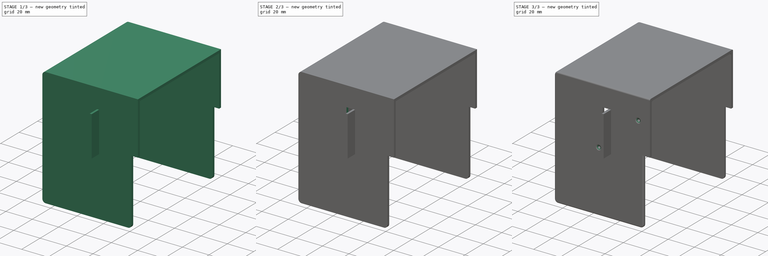
[diagram: build sequence overview — one tinted view per stage of 3, left to right]
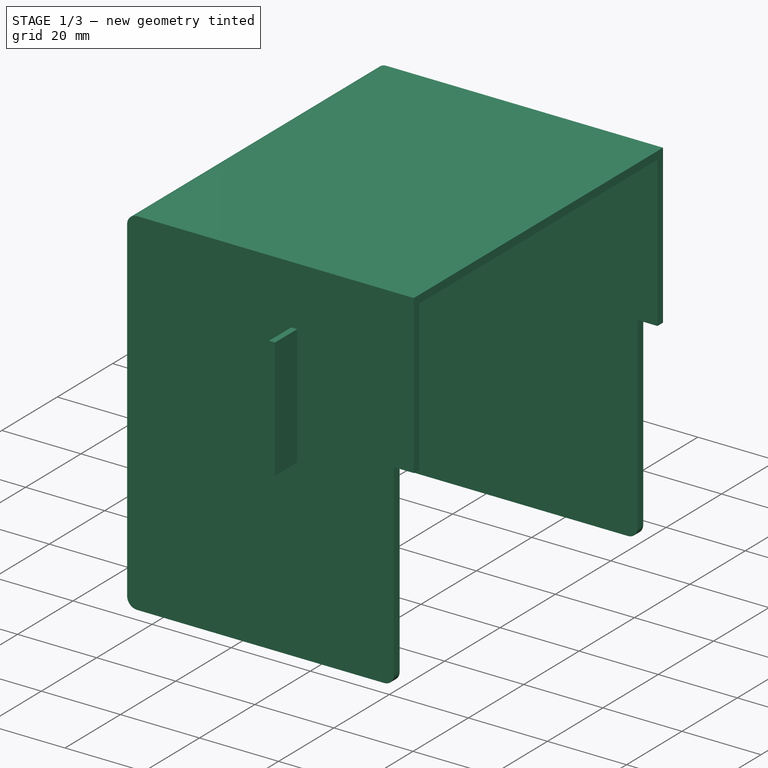
[diagram: stage 1 of 3 — iso view after this stage's code; geometry added in this stage tinted green]
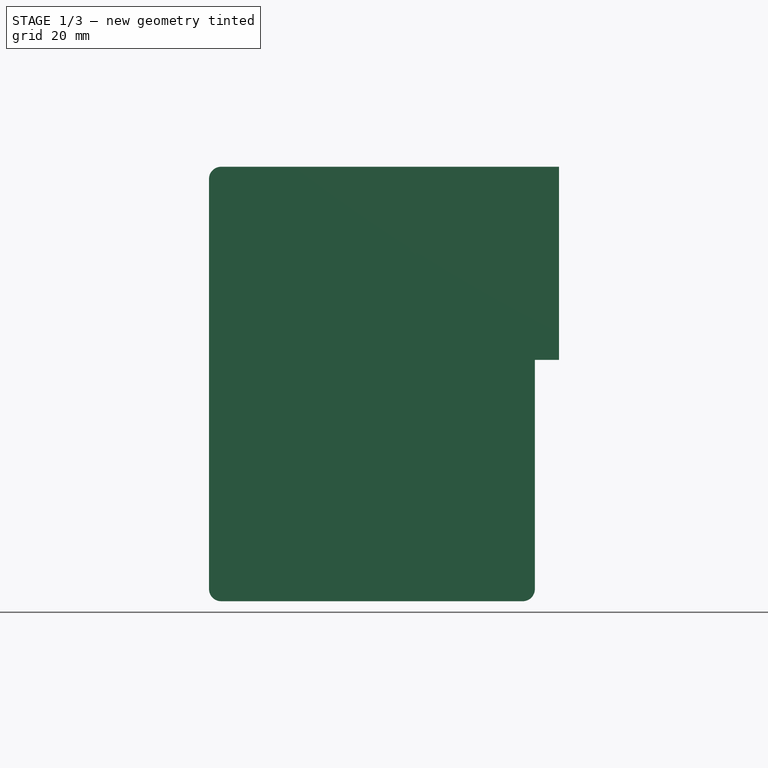
[diagram: stage 1 of 3 — front view after this stage's code; geometry added in this stage tinted green]
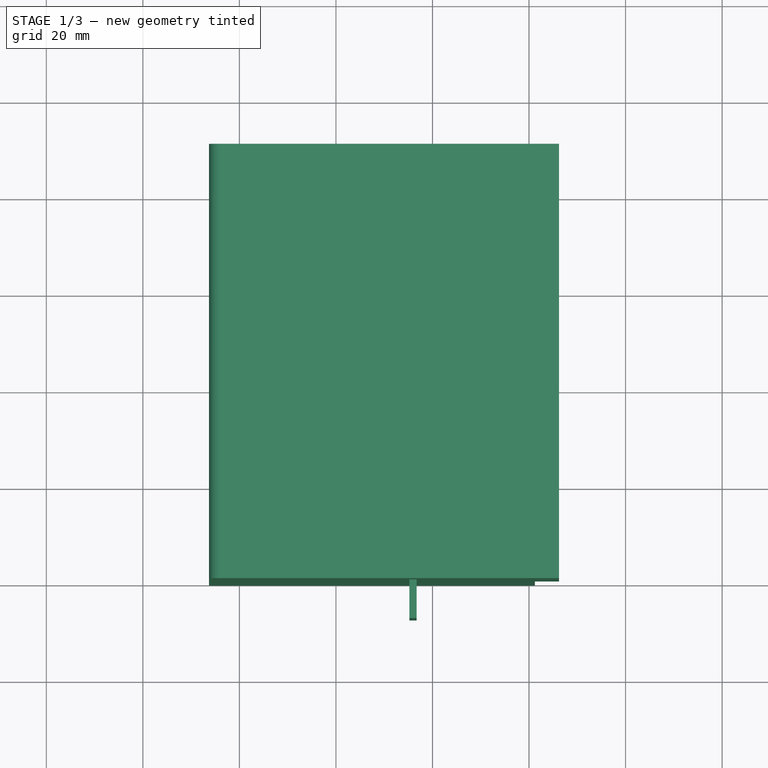
[diagram: stage 1 of 3 — top view after this stage's code; geometry added in this stage tinted green]
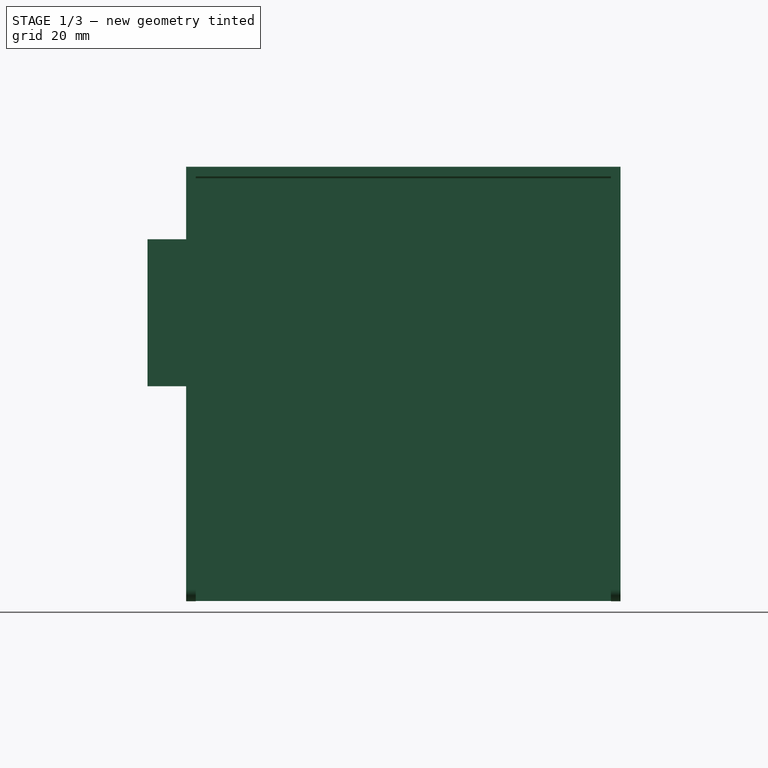
[diagram: stage 1 of 3 — right view after this stage's code; geometry added in this stage tinted green]
FCSTD DOCUMENT  (FreeCAD 0.22R38385 (Git))
Label: artillery
License: All rights reserved
objects: Sketcher::SketchObject×3, PartDesign::Pad×3, PartDesign::Pocket×2, PartDesign::Thickness×1, PartDesign::Hole×1, PartDesign::Fillet×1, PartDesign::Body×1
note: 31 computed .brp shape members not serialized (recipe doc carries the construction recipe); baked Part::Feature solids carry a one-line shape summary decoded from their .brp

FEATURE [Sketcher::SketchObject] Sketch
  ArcFitTolerance = 1e-06
  AttachmentSupport = -> [XZ_Plane]
  FullyConstrained = false
  MakeInternals = false
  MapMode = 5
  Placement = pos=(0,0,0) rot=(1,0,0;1.5708rad)
  sketch-geometry (21):
    g0: Circle CenterX=67.2071 CenterY=73.431 CenterZ=0 NormalX=0 NormalY=0 NormalZ=1 AngleXU=0 Radius=1
    g1: Circle CenterX=97.2071 CenterY=99.8885 CenterZ=0 NormalX=0 NormalY=0 NormalZ=1 AngleXU=0 Radius=1
    g2: Circle CenterX=97.2071 CenterY=99.8885 CenterZ=0 NormalX=0 NormalY=0 NormalZ=1 AngleXU=0 Radius=2
    g3: Circle CenterX=67.2071 CenterY=73.431 CenterZ=0 NormalX=0 NormalY=0 NormalZ=1 AngleXU=0 Radius=2
    g4: LineSegment StartX=75.2071 StartY=71.431 StartZ=0 EndX=75.2071 EndY=101.889 EndZ=0
    g5: LineSegment StartX=70.2071 StartY=101.889 StartZ=0 EndX=70.2071 EndY=71.431 EndZ=0
    g6: LineSegment StartX=75.2071 StartY=101.889 StartZ=0 EndX=75.2071 EndY=71.431 EndZ=0
    g7: LineSegment StartX=75.2071 StartY=71.431 StartZ=0 EndX=76.7071 EndY=71.431 EndZ=0
    g8: LineSegment StartX=76.7071 StartY=71.431 StartZ=0 EndX=76.7071 EndY=101.889 EndZ=0
    g9: LineSegment StartX=76.7071 StartY=101.889 StartZ=0 EndX=75.2071 EndY=101.889 EndZ=0
    g10: LineSegment StartX=33.7071 StartY=114.389 StartZ=0 EndX=33.7071 EndY=29.3885 EndZ=0
    g11: LineSegment StartX=36.2071 StartY=26.8885 StartZ=0 EndX=98.7071 EndY=26.8885 EndZ=0
    g12: LineSegment StartX=106.207 StartY=76.8885 StartZ=0 EndX=106.207 EndY=116.889 EndZ=0
    g13: LineSegment StartX=106.207 StartY=116.889 StartZ=0 EndX=36.2071 EndY=116.889 EndZ=0
    g14: LineSegment StartX=106.207 StartY=76.8885 StartZ=0 EndX=101.207 EndY=76.8885 EndZ=0
    g15: LineSegment StartX=101.207 StartY=76.8885 StartZ=0 EndX=101.207 EndY=29.3885 EndZ=0
    g16: ArcOfCircle CenterX=36.2071 CenterY=114.389 CenterZ=0 NormalX=0 NormalY=0 NormalZ=1 AngleXU=0 Radius=2.5 StartAngle=1.5708 EndAngle=3.14159
    g17: ArcOfCircle CenterX=36.2071 CenterY=29.3885 CenterZ=0 NormalX=0 NormalY=0 NormalZ=1 AngleXU=0 Radius=2.5 StartAngle=3.14159 EndAngle=4.71239
    g18: ArcOfCircle CenterX=98.7071 CenterY=29.3885 CenterZ=0 NormalX=0 NormalY=0 NormalZ=1 AngleXU=0 Radius=2.5 StartAngle=4.71239 EndAngle=6.28319
    g19: LineSegment StartX=70.2071 StartY=101.889 StartZ=0 EndX=75.2071 EndY=101.889 EndZ=0
    g20: LineSegment StartX=70.2071 StartY=71.431 StartZ=0 EndX=75.2071 EndY=71.431 EndZ=0
  constraints (51):
    c: Diameter(g1) = 2
    c: Equal(g1,g0)
    c: Distance(g0,g1) = 40
    c: DistanceX(g0,g1) = 30
    c: Coincident(g2,g1)
    c: Distance(g2,g1) = 1
    c: Coincident(g3,g0)
    c: Distance(g3,g0) = 1
    c: Vertical(g4)
    c: Vertical(g5)
    c: DistanceX(g5,g4) = 5
    c: Distance(g3,g5) = 1
    c: Coincident(g6,g7)
    c: Coincident(g7,g8)
    c: Coincident(g8,g9)
    c: Coincident(g9,g6)
    c: Vertical(g8)
    c: Horizontal(g7)
    c: Horizontal(g9)
    c: Distance(g6,g8) = 1.5
    c: Coincident(g6,g4)
    c: Coincident(g12,g13)
    c: Vertical(g10)
    c: Vertical(g12)
    c: Horizontal(g11)
    c: Horizontal(g13)
    c: Distance(g2,g13) = 15
    c: Distance(g2,g12) = 7
    c: Horizontal(g14)
    c: Coincident(g15,g14)
    c: Vertical(g15)
    c: DistanceY(g12,g12) = 40
    c: DistanceX(g14,g14) = 5
    c: Coincident(g14,g12)
    c: Diameter(g16) = 5
    c: Equal(g16,g17)
    c: Equal(g17,g18)
    c: Tangent(g16,g10) = -1.5708
    c: Tangent(g16,g13) = -1.5708
    c: Tangent(g17,g11) = -1.5708
    c: Tangent(g17,g10) = -1.5708
    c: Tangent(g15,g18) = 1.5708
    c: Tangent(g11,g18) = -1.5708
    c: DistanceX(g13,g13) = 70
    c: DistanceY(g10,g10) = 85
    c: Coincident(g19,g5)
    c: Coincident(g19,g4)
    c: Horizontal(g19)
    c: Coincident(g20,g5)
    c: Coincident(g20,g4)
    c: Horizontal(g20)
FEATURE [PartDesign::Pad] Pad
  Direction = (0,-1,2e-16)
  Length = 90
  Length2 = 10
  Placement = pos=(0,0,0) rot=(1,0,0;1.5708rad)
  Profile = -> Sketch [Edge12,Edge13,Edge14,Edge15,Edge16,Edge17,Edge18,Edge19,Edge11]
  ReferenceAxis = -> Sketch [N_Axis]
  Refine = true
  Reversed = true
  Suppressed = false
  Type = 0
FEATURE [PartDesign::Pad] Pad001
  BaseFeature = -> Pad
  Direction = (0,-1,2e-16)
  Length = 8
  Length2 = 10
  Placement = pos=(0,0,0) rot=(1,0,0;1.5708rad)
  Profile = -> Sketch [Edge9,Edge6,Vertex5,Edge5,Edge7]
  ReferenceAxis = -> Sketch [N_Axis]
  Refine = true
  Suppressed = false
  Type = 0
FEATURE [PartDesign::Thickness] Thickness
  Base = -> Pad001 [Face2,Face8,Face6,Face10,Face11,Face9]
  BaseFeature = -> Pad001
  Intersection = false
  Join = 1
  Mode = 2
  Refine = true
  Reversed = true
  SupportTransform = false
  Suppressed = false
  Value = 2
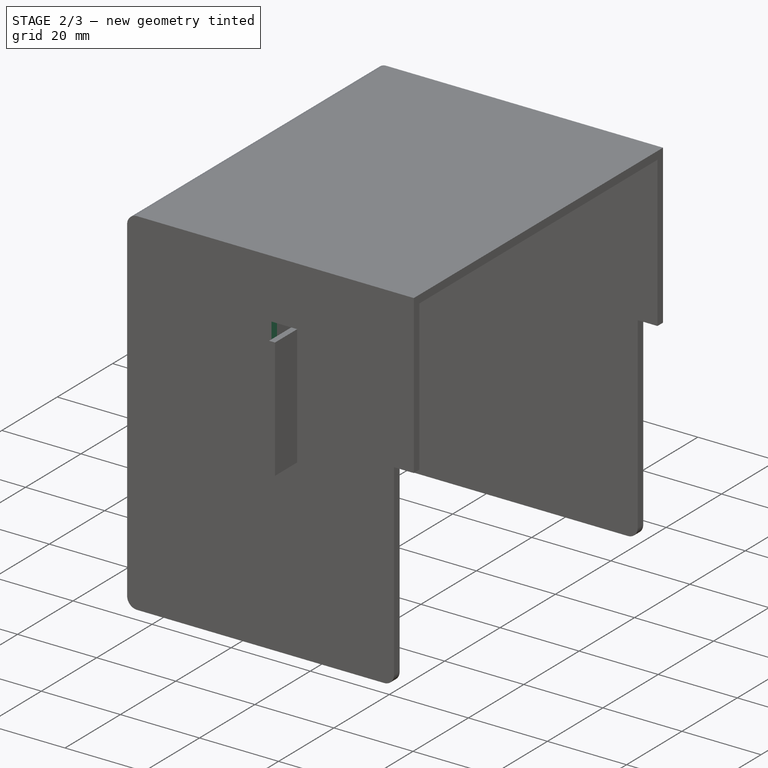
[diagram: stage 2 of 3 — iso view after this stage's code; geometry added in this stage tinted green]
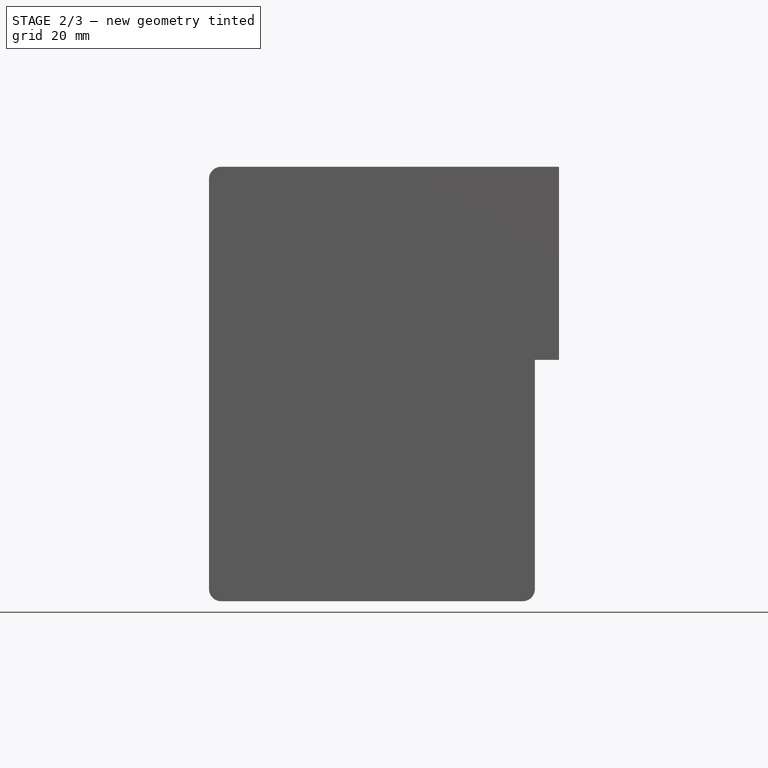
[diagram: stage 2 of 3 — front view after this stage's code; geometry added in this stage tinted green]
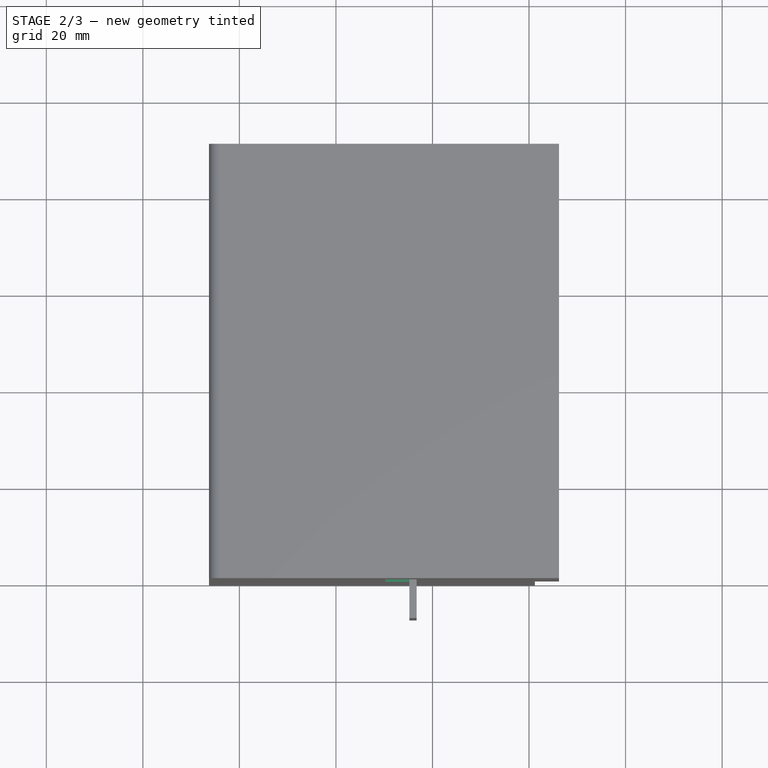
[diagram: stage 2 of 3 — top view after this stage's code; geometry added in this stage tinted green]
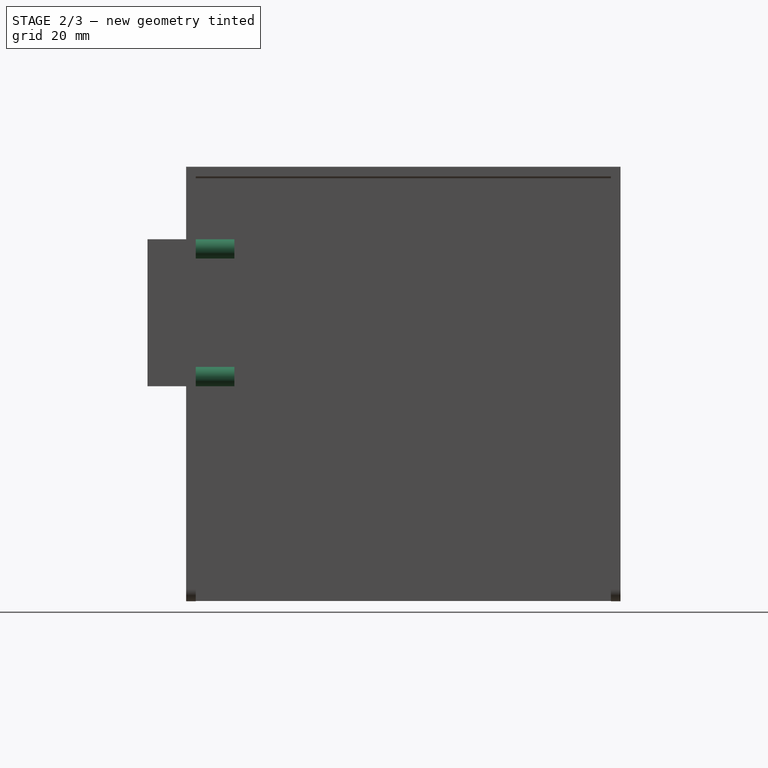
[diagram: stage 2 of 3 — right view after this stage's code; geometry added in this stage tinted green]
FEATURE [PartDesign::Pad] Pad002
  BaseFeature = -> Thickness
  Direction = (0,-1,2e-16)
  Length = 10
  Length2 = 10
  Profile = -> Sketch [Edge3,Edge2,Edge4,Edge1]
  ReferenceAxis = -> Sketch [N_Axis]
  Refine = true
  Reversed = true
  Suppressed = false
  Type = 0
FEATURE [Sketcher::SketchObject] Sketch001
  ArcFitTolerance = 1e-06
  AttachmentSupport = -> [XZ_Plane]
  ExternalGeometry = -> [Sketch]
  FullyConstrained = true
  MakeInternals = false
  MapMode = 5
  Placement = pos=(0,0,0) rot=(1,0,0;1.5708rad)
  sketch-geometry (4):
    g0: LineSegment StartX=70.2071 StartY=101.889 StartZ=0 EndX=70.2071 EndY=71.431 EndZ=0
    g1: LineSegment StartX=70.2071 StartY=71.431 StartZ=0 EndX=75.2071 EndY=71.431 EndZ=0
    g2: LineSegment StartX=75.2071 StartY=71.431 StartZ=0 EndX=75.2071 EndY=101.889 EndZ=0
    g3: LineSegment StartX=75.2071 StartY=101.889 StartZ=0 EndX=70.2071 EndY=101.889 EndZ=0
  constraints (10):
    c: Coincident(g0,g1)
    c: Coincident(g1,g2)
    c: Coincident(g2,g3)
    c: Coincident(g3,g0)
    c: Vertical(g0)
    c: Vertical(g2)
    c: Horizontal(g1)
    c: Horizontal(g3)
    c: Coincident(g0,g-3)
    c: Coincident(g1,g-4)
FEATURE [PartDesign::Pocket] Pocket
  BaseFeature = -> Pad002
  Direction = (0,1,-2e-16)
  Length = 0
  Length2 = 5
  Profile = -> Sketch001
  ReferenceAxis = -> Sketch001 [N_Axis]
  Refine = true
  Suppressed = false
  Type = 3
  UpToFace = -> Pad002 [Face6]
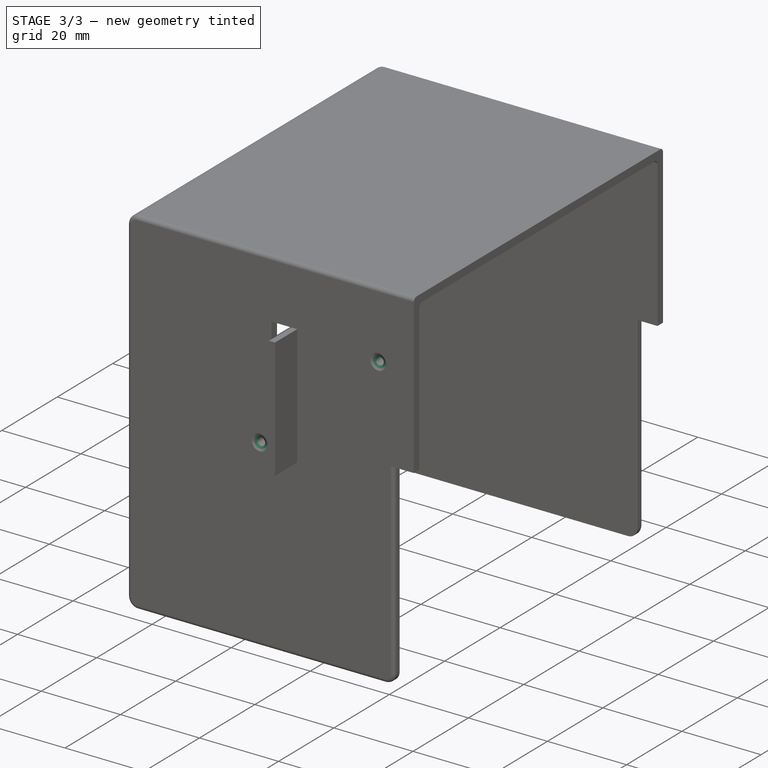
[diagram: stage 3 of 3 — iso view after this stage's code; geometry added in this stage tinted green]
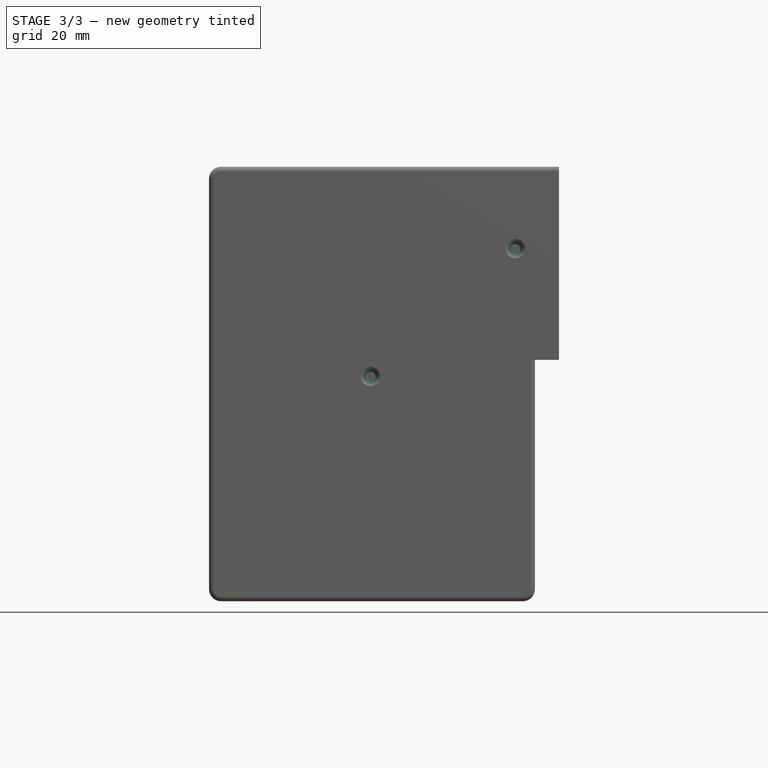
[diagram: stage 3 of 3 — front view after this stage's code; geometry added in this stage tinted green]
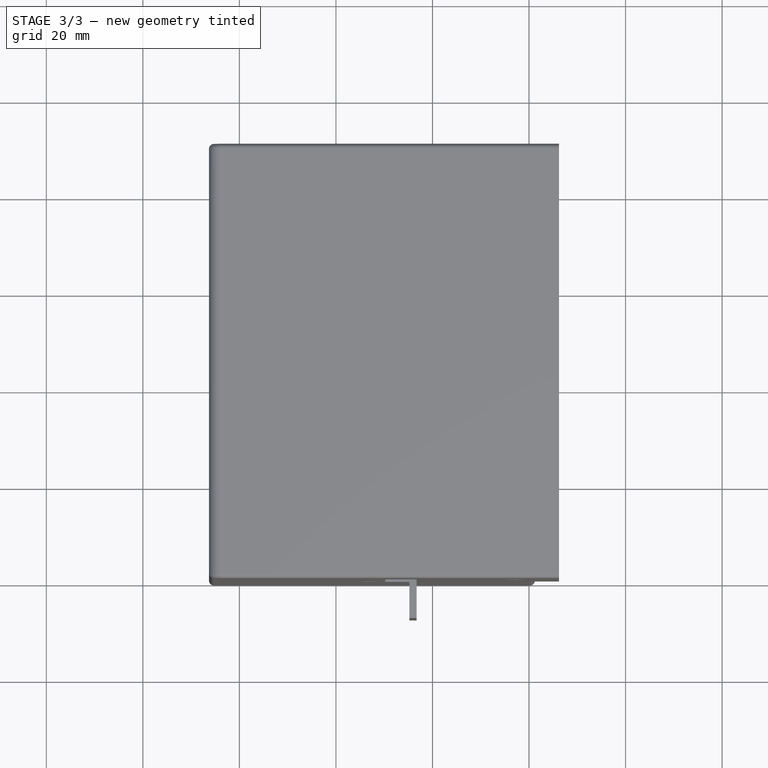
[diagram: stage 3 of 3 — top view after this stage's code; geometry added in this stage tinted green]
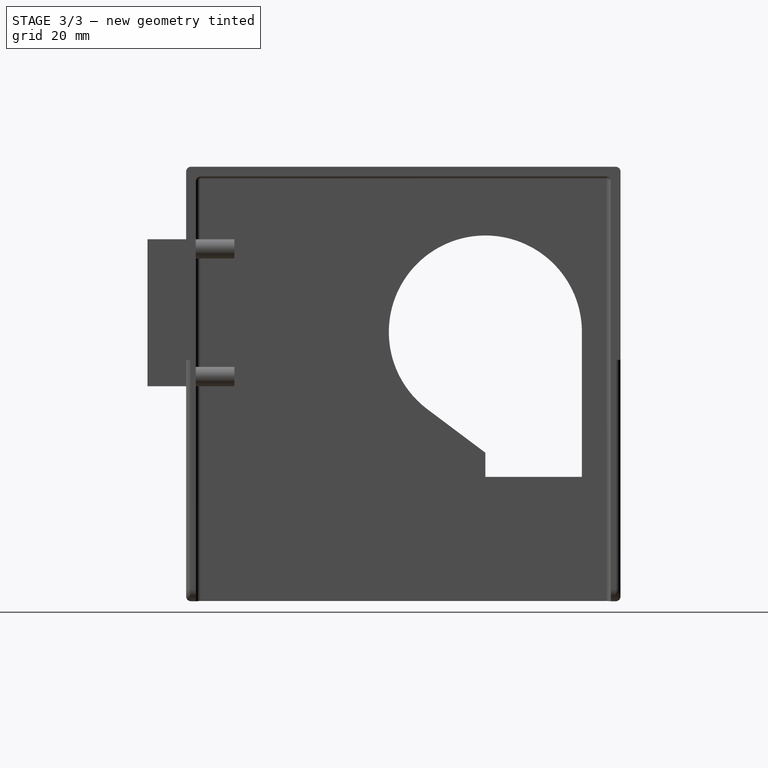
[diagram: stage 3 of 3 — right view after this stage's code; geometry added in this stage tinted green]
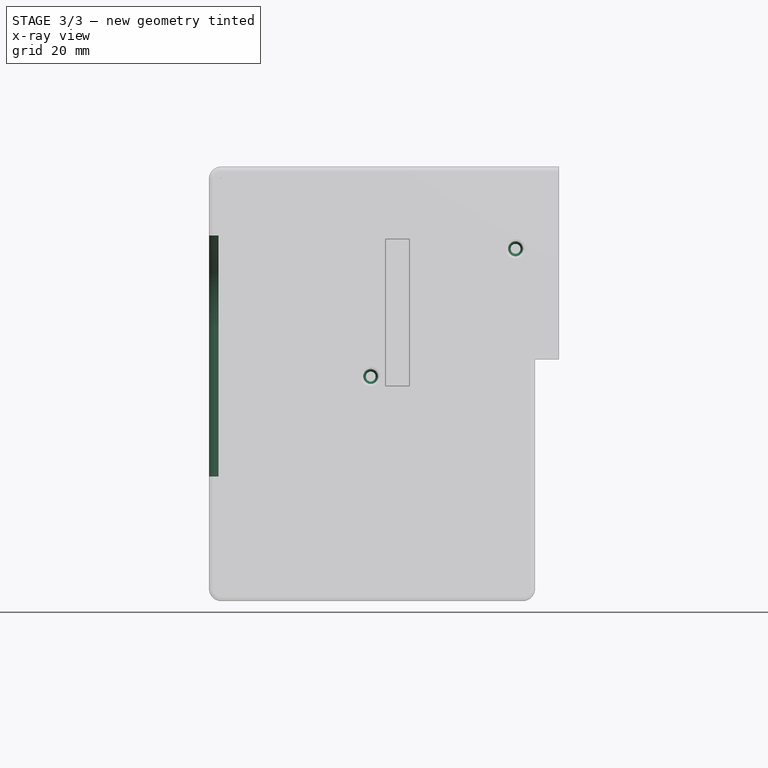
[diagram: stage 3 of 3 — x-ray composite at the front view; earlier geometry ghosted, this stage's added geometry solid]
FEATURE [PartDesign::Hole] Hole
  BaseFeature = -> Pocket
  CustomThreadClearance = 0
  Depth = 25
  DepthType = 0
  Diameter = 2
  DrillForDepth = false
  DrillPoint = 1
  DrillPointAngle = 118
  HoleCutCountersinkAngle = 120
  HoleCutCustomValues = false
  HoleCutDepth = 0
  HoleCutDiameter = 4
  HoleCutType = 2
  ModelThread = false
  Profile = -> Sketch [Edge2,Edge1]
  Refine = true
  Suppressed = false
  Tapered = false
  TaperedAngle = 90
  ThreadClass = 0
  ThreadDepth = 25
  ThreadDepthType = 0
  ThreadDirection = 0
  ThreadFit = 0
  ThreadSize = 0
  ThreadType = 0
  Threaded = false
  UseCustomThreadClearance = false
FEATURE [Sketcher::SketchObject] Sketch002
  ArcFitTolerance = 1e-06
  AttachmentSupport = -> [Hole]
  ExternalGeometry = -> [Hole]
  FullyConstrained = true
  MakeInternals = false
  MapMode = 5
  Placement = pos=(33.7071,0,0) rot=(0.57735,-0.57735,-0.57735;2.0944rad)
  sketch-geometry (6):
    g0: ArcOfCircle CenterX=-62 CenterY=82.6564 CenterZ=0 NormalX=0 NormalY=0 NormalZ=1 AngleXU=0 Radius=20 StartAngle=5.35589 EndAngle=9.42478
    g1: LineSegment StartX=-82 StartY=82.6564 StartZ=0 EndX=-82 EndY=52.6564 EndZ=0
    g2: LineSegment StartX=-62 StartY=57.6564 StartZ=0 EndX=-62 EndY=52.6564 EndZ=0
    g3: LineSegment [constr] StartX=-62 StartY=57.6564 StartZ=0 EndX=-62 EndY=82.6564 EndZ=0
    g4: LineSegment StartX=-62 StartY=52.6564 StartZ=0 EndX=-82 EndY=52.6564 EndZ=0
    g5: LineSegment StartX=-50 StartY=66.6564 StartZ=0 EndX=-62 EndY=57.6564 EndZ=0
  constraints (15):
    c: Diameter(g0) = 40
    c: Vertical(g1)
    c: Vertical(g2)
    c: Coincident(g3,g0)
    c: Vertical(g3)
    c: Coincident(g4,g2)
    c: Coincident(g4,g1)
    c: Horizontal(g4)
    c: Tangent(g0,g1) = -1.5708
    c: Block(g0)
    c: DistanceY(g2,g5) = 5
    c: DistanceY(g1,g1) = 30
    c: Tangent(g0,g5) = 1.5708
    c: Coincident(g2,g5)
    c: Coincident(g3,g2)
FEATURE [PartDesign::Pocket] Pocket001
  BaseFeature = -> Hole
  Direction = (1,0,0)
  Length = 0
  Length2 = 5
  Profile = -> Sketch002
  ReferenceAxis = -> Sketch002 [N_Axis]
  Refine = true
  Suppressed = false
  Type = 3
  UpToFace = -> Hole [Face27]
FEATURE [PartDesign::Fillet] Fillet
  Base = -> Pocket001 [Edge52,Edge53,Edge50,Edge41,Edge39,Edge37,Edge4,Edge14,Edge29,Edge3,Edge13,Edge16]
  BaseFeature = -> Pocket001
  Radius = 1
  Refine = true
  SupportTransform = false
  Suppressed = false
  UseAllEdges = false
FEATURE [PartDesign::Body] Body  label="extruder case"
  AllowCompound = false
  Group = -> [Sketch,Pad,Pad001,Thickness,Pad002,Sketch001,Pocket,Hole,Sketch002,Pocket001,Fillet]
  Origin = -> Origin
  Tip = -> Fillet
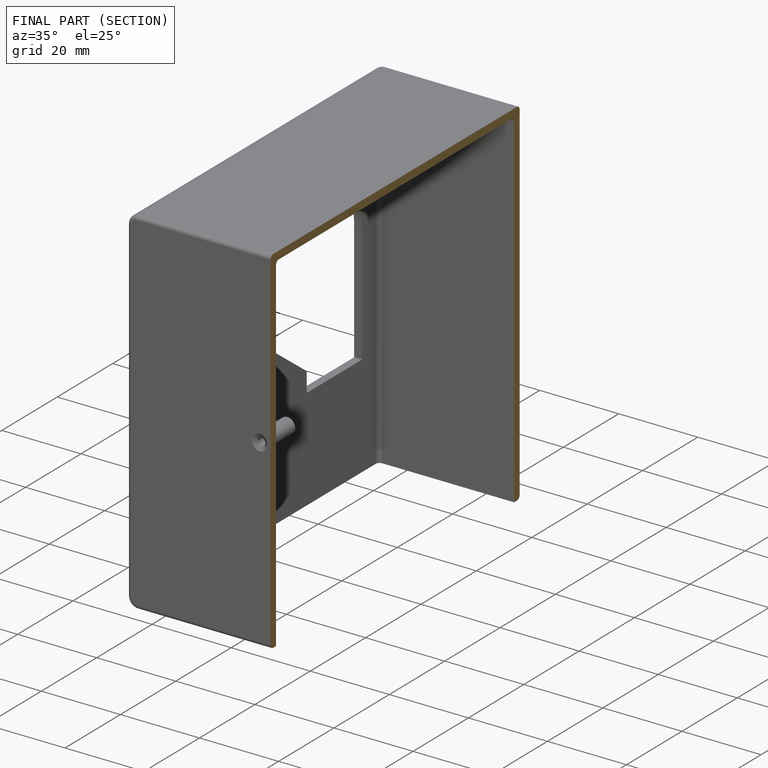
[diagram: finished part — half-section view (interior)]
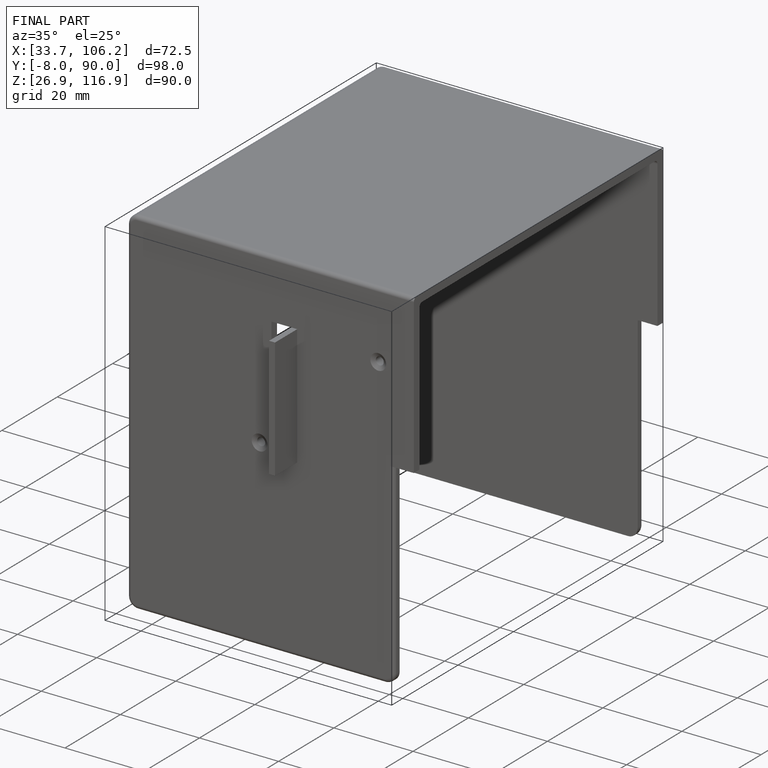
[diagram: finished part — iso view with bounding-box wireframe]
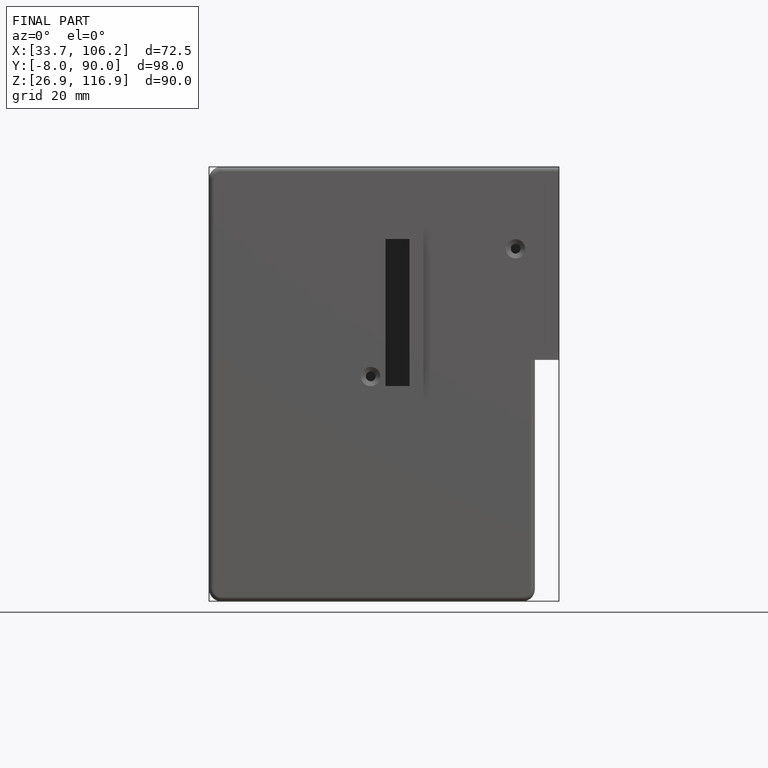
[diagram: finished part — front view with bounding-box wireframe]
